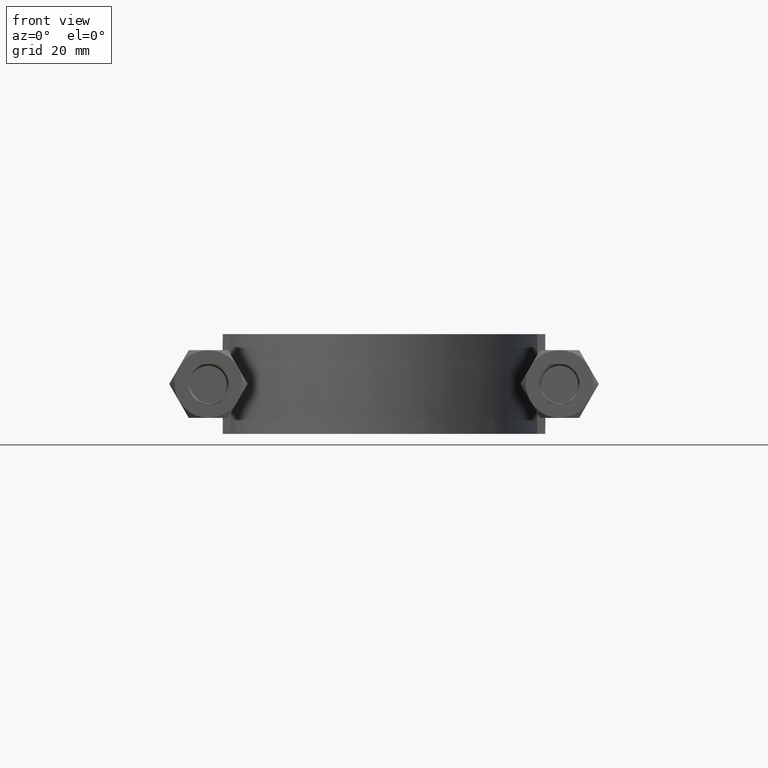
[diagram: clean part render]
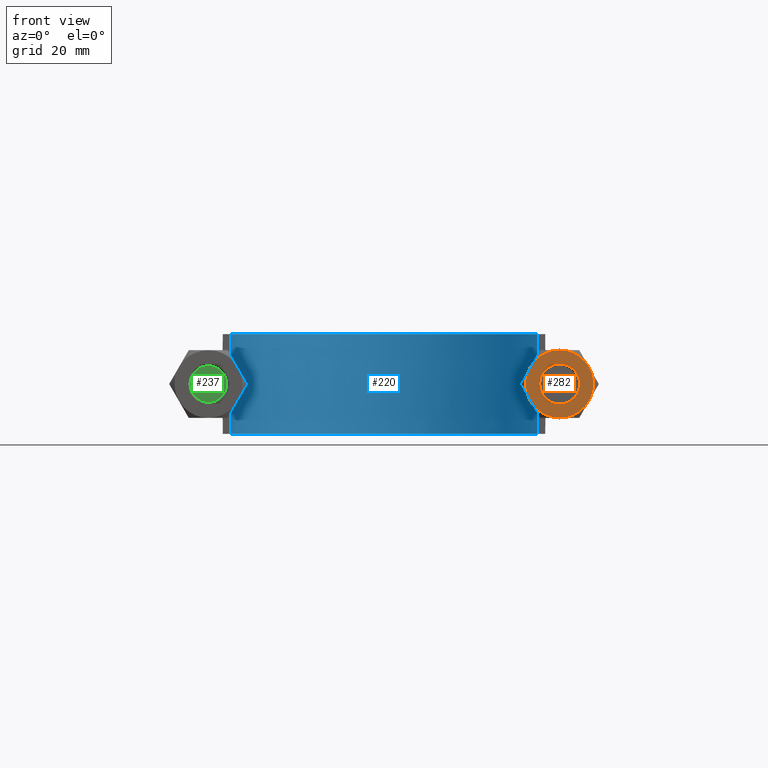
[diagram: same view with three faces highlighted in distinct colors, each labeled with its STEP entity id]
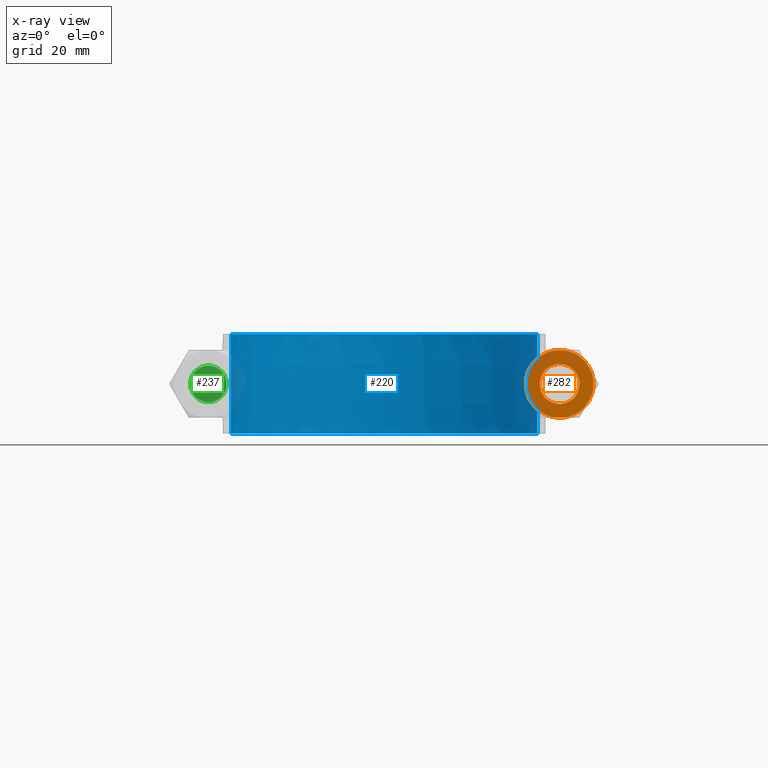
[diagram: x-ray of the same camera — body ghosted, the three highlighted faces saturated]
A machine part, front view with three faces highlighted in distinct colors.
The next image is the same camera in x-ray (body ghosted, the three faces saturated) — at least one of them is partly hidden behind the body in this view.
Their STEP definitions:

[orange] entity #282 — the highlighted planar face has unit normal (0, 1, 0).
#282 = ADVANCED_FACE( '', ( #435, #436 ), #437, .F. );
#435 = FACE_OUTER_BOUND( '', #1278, .T. );
#436 = FACE_BOUND( '', #1279, .T. );
#437 = PLANE( '', #1280 );
#1278 = EDGE_LOOP( '', ( #1752, #1753, #1754, #1755, #1756, #1757 ) );
#1279 = EDGE_LOOP( '', ( #1758 ) );
#1280 = AXIS2_PLACEMENT_3D( '', #1759, #1760, #1761 );
#1752 = ORIENTED_EDGE( '', *, *, #1972, .F. );
#1753 = ORIENTED_EDGE( '', *, *, #1977, .F. );
#1754 = ORIENTED_EDGE( '', *, *, #1953, .F. );
#1755 = ORIENTED_EDGE( '', *, *, #1969, .F. );
#1756 = ORIENTED_EDGE( '', *, *, #1939, .F. );
#1757 = ORIENTED_EDGE( '', *, *, #1978, .F. );
#1758 = ORIENTED_EDGE( '', *, *, #1979, .T. );
#1759 = CARTESIAN_POINT( '', ( 44.0000000000000, 20.0000000000000, 1.48980220521233E-015 ) );
#1760 = DIRECTION( '', ( 1.49966072182214E-032, 1.00000000000000, 6.12303176911190E-017 ) );
#1761 = DIRECTION( '', ( 1.00000000000000, 0.000000000000000, -2.44921270764475E-016 ) );
#1939 = EDGE_CURVE( '', #2152, #2154, #2155, .T. );
#1953 = EDGE_CURVE( '', #2173, #2180, #2181, .T. );
#1969 = EDGE_CURVE( '', #2154, #2173, #2208, .T. );
#1972 = EDGE_CURVE( '', #2212, #2213, #2214, .T. );
#1977 = EDGE_CURVE( '', #2180, #2212, #2219, .T. );
#1978 = EDGE_CURVE( '', #2213, #2152, #2220, .T. );
#1979 = EDGE_CURVE( '', #2221, #2221, #2222, .T. );
#2152 = VERTEX_POINT( '', #2717 );
#2154 = VERTEX_POINT( '', #2724 );
#2155 = CIRCLE( '', #2725, 8.49999999999575 );
#2173 = VERTEX_POINT( '', #2752 );
#2180 = VERTEX_POINT( '', #2771 );
#2181 = CIRCLE( '', #2772, 8.49999999999575 );
#2208 = CIRCLE( '', #2811, 8.49999999999575 );
#2212 = VERTEX_POINT( '', #2820 );
#2213 = VERTEX_POINT( '', #2821 );
#2214 = CIRCLE( '', #2822, 8.49999999999575 );
#2219 = CIRCLE( '', #2839, 8.49999999999575 );
#2220 = CIRCLE( '', #2840, 8.49999999999575 );
#2221 = VERTEX_POINT( '', #2841 );
#2222 = CIRCLE( '', #2842, 4.99999999999750 );
#2717 = CARTESIAN_POINT( '', ( 51.3612159321640, 20.0000000000000, -4.24999999999785 ) );
#2724 = CARTESIAN_POINT( '', ( 44.0000000000000, 20.0000000000000, -8.49999999999575 ) );
#2725 = AXIS2_PLACEMENT_3D( '', #3031, #3032, #3033 );
#2752 = CARTESIAN_POINT( '', ( 36.6387840678359, 20.0000000000000, -4.24999999999789 ) );
#2771 = CARTESIAN_POINT( '', ( 36.6387840678360, 20.0000000000000, 4.24999999999788 ) );
#2772 = AXIS2_PLACEMENT_3D( '', #3052, #3053, #3054 );
#2811 = AXIS2_PLACEMENT_3D( '', #3083, #3084, #3085 );
#2820 = CARTESIAN_POINT( '', ( 44.0000000000000, 20.0000000000000, 8.49999999999575 ) );
#2821 = CARTESIAN_POINT( '', ( 51.3612159321641, 20.0000000000000, 4.24999999999787 ) );
#2822 = AXIS2_PLACEMENT_3D( '', #3089, #3090, #3091 );
#2839 = AXIS2_PLACEMENT_3D( '', #3094, #3095, #3096 );
#2840 = AXIS2_PLACEMENT_3D( '', #3097, #3098, #3099 );
#2841 = CARTESIAN_POINT( '', ( 44.0000000000000, 20.0000000000000, 4.99999999999750 ) );
#2842 = AXIS2_PLACEMENT_3D( '', #3100, #3101, #3102 );
#3031 = CARTESIAN_POINT( '', ( 44.0000000000000, 20.0000000000000, 1.48980220521233E-015 ) );
#3032 = DIRECTION( '', ( 1.49966072182214E-032, 1.00000000000000, 6.12303176911190E-017 ) );
#3033 = DIRECTION( '', ( 0.000000000000000, -6.12303176911190E-017, 1.00000000000000 ) );
#3052 = CARTESIAN_POINT( '', ( 44.0000000000000, 20.0000000000000, 1.48980220521233E-015 ) );
#3053 = DIRECTION( '', ( 1.49966072182214E-032, 1.00000000000000, 6.12303176911190E-017 ) );
#3054 = DIRECTION( '', ( 0.000000000000000, -6.12303176911190E-017, 1.00000000000000 ) );
#3083 = CARTESIAN_POINT( '', ( 44.0000000000000, 20.0000000000000, 1.48980220521233E-015 ) );
#3084 = DIRECTION( '', ( 1.49966072182214E-032, 1.00000000000000, 6.12303176911190E-017 ) );
#3085 = DIRECTION( '', ( 0.000000000000000, -6.12303176911190E-017, 1.00000000000000 ) );
#3089 = CARTESIAN_POINT( '', ( 44.0000000000000, 20.0000000000000, 1.48980220521233E-015 ) );
#3090 = DIRECTION( '', ( 1.49966072182214E-032, 1.00000000000000, 6.12303176911190E-017 ) );
#3091 = DIRECTION( '', ( 0.000000000000000, -6.12303176911190E-017, 1.00000000000000 ) );
#3094 = CARTESIAN_POINT( '', ( 44.0000000000000, 20.0000000000000, 1.48980220521233E-015 ) );
#3095 = DIRECTION( '', ( 1.49966072182214E-032, 1.00000000000000, 6.12303176911190E-017 ) );
#3096 = DIRECTION( '', ( 0.000000000000000, -6.12303176911190E-017, 1.00000000000000 ) );
#3097 = CARTESIAN_POINT( '', ( 44.0000000000000, 20.0000000000000, 1.48980220521233E-015 ) );
#3098 = DIRECTION( '', ( 1.49966072182214E-032, 1.00000000000000, 6.12303176911190E-017 ) );
#3099 = DIRECTION( '', ( 0.000000000000000, -6.12303176911190E-017, 1.00000000000000 ) );
#3100 = CARTESIAN_POINT( '', ( 44.0000000000000, 20.0000000000000, 1.48980220521233E-015 ) );
#3101 = DIRECTION( '', ( 1.49966072182214E-032, 1.00000000000000, 6.12303176911190E-017 ) );
#3102 = DIRECTION( '', ( 0.000000000000000, -6.12303176911190E-017, 1.00000000000000 ) );

[blue] entity #220 — the highlighted face is a SurfaceOfExtrusion surface.
#220 = ADVANCED_FACE( '', ( #297 ), #298, .T. );
#297 = FACE_OUTER_BOUND( '', #464, .T. );
#298 = SURFACE_OF_LINEAR_EXTRUSION( '', #465, #466 );
#464 = EDGE_LOOP( '', ( #1312, #1313, #1314, #1315 ) );
#465 = B_SPLINE_CURVE_WITH_KNOTS( '', 3, ( #1316, #1317, #1318, #1319, #1320, #1321, #1322, #1323, #1324, #1325, #1326, #1327, #1328, #1329, #1330, #1331, #1332 ), .UNSPECIFIED., .F., .F., ( 4, 3, 1, 1, 1, 1, 1, 1, 1, 3, 4 ), ( -7.93017456359102, -7.00000000000000, -6.50000000000000, -6.00000000000000, -5.00000000000000, -4.00000000000000, -3.00000000000000, -2.00000000000000, -1.50000000000000, -1.00000000000000, -0.0698254364089773 ), .UNSPECIFIED. );
#466 = VECTOR( '', #1333, 1000.00000000000 );
#1312 = ORIENTED_EDGE( '', *, *, #1839, .T. );
#1313 = ORIENTED_EDGE( '', *, *, #1843, .T. );
#1314 = ORIENTED_EDGE( '', *, *, #1844, .F. );
#1315 = ORIENTED_EDGE( '', *, *, #1845, .T. );
#1316 = CARTESIAN_POINT( '', ( 38.4000000000000, 59.3000000000000, 12.5000100000909 ) );
#1317 = CARTESIAN_POINT( '', ( 38.4000000000000, 71.7333333333333, 12.5000100000909 ) );
#1318 = CARTESIAN_POINT( '', ( 38.4000000000000, 84.1666666666667, 12.5000100000909 ) );
#1319 = CARTESIAN_POINT( '', ( 38.4000000000000, 96.6000000000000, 12.5000100000909 ) );
#1320 = CARTESIAN_POINT( '', ( 38.4000000000000, 99.9378960382427, 12.5000100000909 ) );
#1321 = CARTESIAN_POINT( '', ( 37.5004323173849, 106.653498701236, 12.5000100000909 ) );
#1322 = CARTESIAN_POINT( '', ( 32.3590360537293, 119.146842750795, 12.5000100000909 ) );
#1323 = CARTESIAN_POINT( '', ( 20.0971465093487, 131.410921736661, 12.5000100000909 ) );
#1324 = CARTESIAN_POINT( '', ( 3.06297339866991E-014, 136.794539131670, 12.5000100000909 ) );
#1325 = CARTESIAN_POINT( '', ( -20.0971465093486, 131.410921736661, 12.5000100000909 ) );
#1326 = CARTESIAN_POINT( '', ( -32.3590360537293, 119.146842750795, 12.5000100000909 ) );
#1327 = CARTESIAN_POINT( '', ( -37.5004323173848, 106.653498701236, 12.5000100000909 ) );
#1328 = CARTESIAN_POINT( '', ( -38.4000000000000, 99.9378960382428, 12.5000100000909 ) );
#1329 = CARTESIAN_POINT( '', ( -38.4000000000000, 96.6000000000000, 12.5000100000909 ) );
#1330 = CARTESIAN_POINT( '', ( -38.4000000000000, 84.1666666666667, 12.5000100000909 ) );
#1331 = CARTESIAN_POINT( '', ( -38.4000000000000, 71.7333333333333, 12.5000100000909 ) );
#1332 = CARTESIAN_POINT( '', ( -38.4000000000000, 59.3000000000000, 12.5000100000909 ) );
#1333 = DIRECTION( '', ( 0.000000000000000, 0.000000000000000, -1.00000000000000 ) );
#1839 = EDGE_CURVE( '', #1989, #1990, #1991, .T. );
#1843 = EDGE_CURVE( '', #1990, #1997, #1998, .F. );
#1844 = EDGE_CURVE( '', #1999, #1997, #2000, .T. );
#1845 = EDGE_CURVE( '', #1999, #1989, #2001, .T. );
#1989 = VERTEX_POINT( '', #2235 );
#1990 = VERTEX_POINT( '', #2236 );
#1991 = LINE( '', #2237, #2238 );
#1997 = VERTEX_POINT( '', #2276 );
#1998 = B_SPLINE_CURVE_WITH_KNOTS( '', 3, ( #2277, #2278, #2279, #2280, #2281, #2282, #2283, #2284, #2285, #2286, #2287, #2288, #2289, #2290, #2291, #2292, #2293 ), .UNSPECIFIED., .F., .F., ( 4, 3, 1, 1, 1, 1, 1, 1, 1, 3, 4 ), ( -7.93017456359102, -7.00000000000000, -6.50000000000000, -6.00000000000000, -5.00000000000000, -4.00000000000000, -3.00000000000000, -2.00000000000000, -1.50000000000000, -1.00000000000000, -0.0698254364089773 ), .UNSPECIFIED. );
#1999 = VERTEX_POINT( '', #2294 );
#2000 = LINE( '', #2295, #2296 );
#2001 = B_SPLINE_CURVE_WITH_KNOTS( '', 3, ( #2297, #2298, #2299, #2300, #2301, #2302, #2303, #2304, #2305, #2306, #2307, #2308, #2309, #2310, #2311, #2312, #2313, #2314, #2315, #2316, #2317, #2318, #2319, #2320, #2321, #2322, #2323, #2324, #2325, #2326, #2327, #2328, #2329, #2330, #2331, #2332, #2333, #2334, #2335, #2336, #2337, #2338, #2339, #2340, #2341, #2342, #2343, #2344, #2345, #2346, #2347, #2348, #2349, #2350, #2351, #2352, #2353, #2354, #2355, #2356, #2357, #2358, #2359, #2360, #2361, #2362, #2363, #2364, #2365, #2366, #2367, #2368, #2369, #2370, #2371, #2372, #2373, #2374, #2375, #2376, #2377, #2378, #2379, #2380, #2381, #2382 ), .UNSPECIFIED., .F., .F., ( 4, 1, 2, 2, 2, 2, 2, 2, 2, 2, 2, 2, 2, 2, 2, 2, 2, 2, 2, 2, 2, 2, 2, 2, 2, 2, 2, 2, 2, 2, 2, 2, 2, 2, 2, 2, 2, 2, 2, 2, 2, 2, 1, 4 ), ( 6.93889390390723E-018, 0.0243379018108107, 0.0365068527162160, 0.0380279715793916, 0.0395490904425673, 0.0425913281689186, 0.0456335658952699, 0.0486758036216212, 0.0547602790743238, 0.0578025168006751, 0.0593236356638507, 0.0608447545270264, 0.0669292299797289, 0.0699714677060801, 0.0714925865692557, 0.0730137054324314, 0.0790981808851338, 0.0851826563378363, 0.0867037752010119, 0.0882248940641875, 0.0912671317905387, 0.0973516072432411, 0.0988727261064167, 0.100393844969592, 0.103436082695944, 0.109520558148646, 0.112562795874997, 0.115605033601348, 0.121689509054051, 0.123210627917226, 0.124731746780402, 0.127773984506753, 0.133858459959456, 0.136900697685807, 0.139942935412158, 0.146027410864861, 0.149069648591212, 0.150590767454388, 0.152111886317563, 0.155154124043915, 0.156675242907090, 0.158196361770266, 0.170365312675671, 0.194703214486480 ), .UNSPECIFIED. );
#2235 = CARTESIAN_POINT( '', ( -38.4000000000000, 59.3000000000000, 12.5000000000000 ) );
#2236 = CARTESIAN_POINT( '', ( -38.4000000000000, 59.3000000000000, -12.5000000000000 ) );
#2237 = CARTESIAN_POINT( '', ( -38.4000000000000, 59.3000000000000, 12.5000100000909 ) );
#2238 = VECTOR( '', #2878, 1000.00000000000 );
#2276 = CARTESIAN_POINT( '', ( 38.4000000000000, 59.3000000000000, -12.5000000000000 ) );
#2277 = CARTESIAN_POINT( '', ( 38.4000000000000, 59.3000000000000, -12.5000000000000 ) );
#2278 = CARTESIAN_POINT( '', ( 38.4000000000000, 71.7333333333333, -12.5000000000000 ) );
#2279 = CARTESIAN_POINT( '', ( 38.4000000000000, 84.1666666666667, -12.5000000000000 ) );
#2280 = CARTESIAN_POINT( '', ( 38.4000000000000, 96.6000000000000, -12.5000000000000 ) );
#2281 = CARTESIAN_POINT( '', ( 38.4000000000000, 99.9378960382427, -12.5000000000000 ) );
#2282 = CARTESIAN_POINT( '', ( 37.5004323173849, 106.653498701236, -12.5000000000000 ) );
#2283 = CARTESIAN_POINT( '', ( 32.3590360537293, 119.146842750795, -12.5000000000000 ) );
#2284 = CARTESIAN_POINT( '', ( 20.0971465093487, 131.410921736661, -12.5000000000000 ) );
#2285 = CARTESIAN_POINT( '', ( 3.06297339866991E-014, 136.794539131670, -12.5000000000000 ) );
#2286 = CARTESIAN_POINT( '', ( -20.0971465093486, 131.410921736661, -12.5000000000000 ) );
#2287 = CARTESIAN_POINT( '', ( -32.3590360537293, 119.146842750795, -12.5000000000000 ) );
#2288 = CARTESIAN_POINT( '', ( -37.5004323173848, 106.653498701236, -12.5000000000000 ) );
#2289 = CARTESIAN_POINT( '', ( -38.4000000000000, 99.9378960382428, -12.5000000000000 ) );
#2290 = CARTESIAN_POINT( '', ( -38.4000000000000, 96.6000000000000, -12.5000000000000 ) );
#2291 = CARTESIAN_POINT( '', ( -38.4000000000000, 84.1666666666667, -12.5000000000000 ) );
#2292 = CARTESIAN_POINT( '', ( -38.4000000000000, 71.7333333333333, -12.5000000000000 ) );
#2293 = CARTESIAN_POINT( '', ( -38.4000000000000, 59.3000000000000, -12.5000000000000 ) );
#2294 = CARTESIAN_POINT( '', ( 38.4000000000000, 59.3000000000000, 12.5000000000000 ) );
#2295 = CARTESIAN_POINT( '', ( 38.4000000000000, 59.3000000000000, 12.5000100000909 ) );
#2296 = VECTOR( '', #2881, 1000.00000000000 );
#2297 = CARTESIAN_POINT( '', ( 38.4000000000000, 59.3000000000000, 12.5000000000000 ) );
#2298 = CARTESIAN_POINT( '', ( 38.4000000000000, 67.4126339369367, 12.5000000000000 ) );
#2299 = CARTESIAN_POINT( '', ( 38.4000000000000, 79.5815848423417, 12.5000000000000 ) );
#2300 = CARTESIAN_POINT( '', ( 38.4000000000000, 91.7505357477467, 12.5000000000000 ) );
#2301 = CARTESIAN_POINT( '', ( 38.4000000000000, 96.3138923372736, 12.5000000000000 ) );
#2302 = CARTESIAN_POINT( '', ( 38.4027743076037, 96.8211194098902, 12.5000000000000 ) );
#2303 = CARTESIAN_POINT( '', ( 38.3830167791574, 97.8338636956790, 12.5000000000000 ) );
#2304 = CARTESIAN_POINT( '', ( 38.3628782069929, 98.3395426144399, 12.5000000000000 ) );
#2305 = CARTESIAN_POINT( '', ( 38.2722040230530, 99.8545348977656, 12.5000000000000 ) );
#2306 = CARTESIAN_POINT( '', ( 38.1714849409613, 100.861808856702, 12.5000000000000 ) );
#2307 = CARTESIAN_POINT( '', ( 37.8904277266655, 102.870977156620, 12.5000000000000 ) );
#2308 = CARTESIAN_POINT( '', ( 37.7100929165158, 103.872871722062, 12.5000000000000 ) );
#2309 = CARTESIAN_POINT( '', ( 37.2682777085644, 105.871178091473, 12.5000000000000 ) );
#2310 = CARTESIAN_POINT( '', ( 37.0058649207665, 106.869209598004, 12.5000000000000 ) );
#2311 = CARTESIAN_POINT( '', ( 36.1099085355124, 109.800428328994, 12.5000000000000 ) );
#2312 = CARTESIAN_POINT( '', ( 35.3652812283339, 111.689277860510, 12.5000000000000 ) );
#2313 = CARTESIAN_POINT( '', ( 34.0270721353676, 114.424482046523, 12.5000000000000 ) );
#2314 = CARTESIAN_POINT( '', ( 33.5438803306412, 115.319763573667, 12.5000000000000 ) );
#2315 = CARTESIAN_POINT( '', ( 32.7614856080269, 116.637153374160, 12.5000000000000 ) );
#2316 = CARTESIAN_POINT( '', ( 32.4911122498970, 117.072039439345, 12.5000000000000 ) );
#2317 = CARTESIAN_POINT( '', ( 31.9310694523163, 117.933259191099, 12.5000000000000 ) );
#2318 = CARTESIAN_POINT( '', ( 31.6416548483074, 118.359099832881, 12.5000000000000 ) );
#2319 = CARTESIAN_POINT( '', ( 30.1598500561493, 120.447972709778, 12.5000000000000 ) );
#2320 = CARTESIAN_POINT( '', ( 28.8544690281685, 122.006253780205, 12.5000000000000 ) );
#2321 = CARTESIAN_POINT( '', ( 26.7242269234556, 124.181725572989, 12.5000000000000 ) );
#2322 = CARTESIAN_POINT( '', ( 25.9852601970117, 124.879711605143, 12.5000000000000 ) );
#2323 = CARTESIAN_POINT( '', ( 24.8327554866621, 125.885251295440, 12.5000000000000 ) );
#2324 = CARTESIAN_POINT( '', ( 24.4412331318477, 126.213513644747, 12.5000000000000 ) );
#2325 = CARTESIAN_POINT( '', ( 23.6432116170531, 126.855950622700, 12.5000000000000 ) );
#2326 = CARTESIAN_POINT( '', ( 23.2357844532914, 127.170799679600, 12.5000000000000 ) );
#2327 = CARTESIAN_POINT( '', ( 21.1728995967701, 128.699717522121, 12.5000000000000 ) );
#2328 = CARTESIAN_POINT( '', ( 19.4461214786924, 129.775116348712, 12.5000000000000 ) );
#2329 = CARTESIAN_POINT( '', ( 15.8424012951628, 131.635807157406, 12.5000000000000 ) );
#2330 = CARTESIAN_POINT( '', ( 13.9663663217125, 132.422851581443, 12.5000000000000 ) );
#2331 = CARTESIAN_POINT( '', ( 11.5271708169513, 133.224762065559, 12.5000000000000 ) );
#2332 = CARTESIAN_POINT( '', ( 11.0351210878859, 133.375746188077, 12.5000000000000 ) );
#2333 = CARTESIAN_POINT( '', ( 10.0502423640909, 133.656786422983, 12.5000000000000 ) );
#2334 = CARTESIAN_POINT( '', ( 9.55637016529635, 133.787194835959, 12.5000000000000 ) );
#2335 = CARTESIAN_POINT( '', ( 8.07051418322873, 134.148502213832, 12.5000000000000 ) );
#2336 = CARTESIAN_POINT( '', ( 7.07429985999588, 134.349545743025, 12.5000000000000 ) );
#2337 = CARTESIAN_POINT( '', ( 4.06886690428292, 134.834187354575, 12.5000000000000 ) );
#2338 = CARTESIAN_POINT( '', ( 2.04300780873486, 135.000351662540, 12.5000000000000 ) );
#2339 = CARTESIAN_POINT( '', ( -0.518810472446091, 134.999911391897, 12.5000000000000 ) );
#2340 = CARTESIAN_POINT( '', ( -1.03384934041121, 134.989267949139, 12.5000000000000 ) );
#2341 = CARTESIAN_POINT( '', ( -2.05999227101022, 134.947123645522, 12.5000000000000 ) );
#2342 = CARTESIAN_POINT( '', ( -2.57100025916361, 134.915690794062, 12.5000000000000 ) );
#2343 = CARTESIAN_POINT( '', ( -4.09798525337116, 134.791070625937, 12.5000000000000 ) );
#2344 = CARTESIAN_POINT( '', ( -5.10793619044561, 134.667626472700, 12.5000000000000 ) );
#2345 = CARTESIAN_POINT( '', ( -8.11438462156133, 134.179780837089, 12.5000000000000 ) );
#2346 = CARTESIAN_POINT( '', ( -10.0876738344829, 133.698850790019, 12.5000000000000 ) );
#2347 = CARTESIAN_POINT( '', ( -13.0003199951630, 132.740024822744, 12.5000000000000 ) );
#2348 = CARTESIAN_POINT( '', ( -13.9672170977487, 132.378727202231, 12.5000000000000 ) );
#2349 = CARTESIAN_POINT( '', ( -15.8546719802245, 131.585984907772, 12.5000000000000 ) );
#2350 = CARTESIAN_POINT( '', ( -16.7774313079128, 131.154197465975, 12.5000000000000 ) );
#2351 = CARTESIAN_POINT( '', ( -19.4833402127082, 129.753490344414, 12.5000000000000 ) );
#2352 = CARTESIAN_POINT( '', ( -21.2036319794209, 128.678400373100, 12.5000000000000 ) );
#2353 = CARTESIAN_POINT( '', ( -23.2504143165322, 127.159581599005, 12.5000000000000 ) );
#2354 = CARTESIAN_POINT( '', ( -23.6545765017689, 126.847044416500, 12.5000000000000 ) );
#2355 = CARTESIAN_POINT( '', ( -24.4524162332018, 126.204260920726, 12.5000000000000 ) );
#2356 = CARTESIAN_POINT( '', ( -24.8469576925089, 125.873240647292, 12.5000000000000 ) );
#2357 = CARTESIAN_POINT( '', ( -26.0068899055368, 124.860053871450, 12.5000000000000 ) );
#2358 = CARTESIAN_POINT( '', ( -26.7486892538445, 124.158088969384, 12.5000000000000 ) );
#2359 = CARTESIAN_POINT( '', ( -28.8823748109422, 121.974991317251, 12.5000000000000 ) );
#2360 = CARTESIAN_POINT( '', ( -30.1833131714200, 120.417299289572, 12.5000000000000 ) );
#2361 = CARTESIAN_POINT( '', ( -31.9490860628640, 117.924495268019, 12.5000000000000 ) );
#2362 = CARTESIAN_POINT( '', ( -32.5065492449488, 117.067357440084, 12.5000000000000 ) );
#2363 = CARTESIAN_POINT( '', ( -33.5561706257855, 115.298108495221, 12.5000000000000 ) );
#2364 = CARTESIAN_POINT( '', ( -34.0419906193419, 114.396127879279, 12.5000000000000 ) );
#2365 = CARTESIAN_POINT( '', ( -35.3824842141312, 111.649725427965, 12.5000000000000 ) );
#2366 = CARTESIAN_POINT( '', ( -36.1236281599900, 109.761104672605, 12.5000000000000 ) );
#2367 = CARTESIAN_POINT( '', ( -37.0127103209049, 106.843968621002, 12.5000000000000 ) );
#2368 = CARTESIAN_POINT( '', ( -37.2717329928219, 105.857467876968, 12.5000000000000 ) );
#2369 = CARTESIAN_POINT( '', ( -37.6030425852181, 104.356073245167, 12.5000000000000 ) );
#2370 = CARTESIAN_POINT( '', ( -37.7041051856697, 103.850877289074, 12.5000000000000 ) );
#2371 = CARTESIAN_POINT( '', ( -37.8853786337735, 102.841026729264, 12.5000000000000 ) );
#2372 = CARTESIAN_POINT( '', ( -37.9657364586178, 102.335935616760, 12.5000000000000 ) );
#2373 = CARTESIAN_POINT( '', ( -38.1763323138402, 100.820170574568, 12.5000000000000 ) );
#2374 = CARTESIAN_POINT( '', ( -38.2761686057870, 99.8090061644105, 12.5000000000000 ) );
#2375 = CARTESIAN_POINT( '', ( -38.3651025185759, 98.2912783131886, 12.5000000000000 ) );
#2376 = CARTESIAN_POINT( '', ( -38.3845912942189, 97.7852051818457, 12.5000000000000 ) );
#2377 = CARTESIAN_POINT( '', ( -38.4030301939459, 96.7727275628628, 12.5000000000000 ) );
#2378 = CARTESIAN_POINT( '', ( -38.4000000000000, 96.2662911261513, 12.5000000000000 ) );
#2379 = CARTESIAN_POINT( '', ( -38.4000000000000, 91.7088031790915, 12.5000000000000 ) );
#2380 = CARTESIAN_POINT( '', ( -38.4000000000000, 79.5555019869322, 12.5000000000000 ) );
#2381 = CARTESIAN_POINT( '', ( -38.4000000000000, 67.4022007947729, 12.5000000000000 ) );
#2382 = CARTESIAN_POINT( '', ( -38.4000000000000, 59.3000000000000, 12.5000000000000 ) );
#2878 = DIRECTION( '', ( 0.000000000000000, 0.000000000000000, -1.00000000000000 ) );
#2881 = DIRECTION( '', ( 0.000000000000000, 0.000000000000000, -1.00000000000000 ) );

[green] entity #237 — the highlighted planar face has unit normal (-0, -1, -0).
#237 = ADVANCED_FACE( '', ( #335 ), #336, .T. );
#335 = FACE_OUTER_BOUND( '', #1178, .T. );
#336 = PLANE( '', #1179 );
#1178 = EDGE_LOOP( '', ( #1440 ) );
#1179 = AXIS2_PLACEMENT_3D( '', #1441, #1442, #1443 );
#1440 = ORIENTED_EDGE( '', *, *, #1882, .T. );
#1441 = CARTESIAN_POINT( '', ( -44.0000000000000, 1.07765359136369E-014, 6.12303176911192E-017 ) );
#1442 = DIRECTION( '', ( -2.44921270764476E-016, -1.00000000000000, -6.12303176911189E-017 ) );
#1443 = DIRECTION( '', ( -1.00000000000000, 2.44921270764476E-016, 3.01888774004914E-048 ) );
#1882 = EDGE_CURVE( '', #2057, #2057, #2058, .T. );
#2057 = VERTEX_POINT( '', #2544 );
#2058 = CIRCLE( '', #2545, 4.60000000000000 );
#2544 = CARTESIAN_POINT( '', ( -39.4000000000000, 9.64989806812033E-015, 6.12303176911191E-017 ) );
#2545 = AXIS2_PLACEMENT_3D( '', #2935, #2936, #2937 );
#2935 = CARTESIAN_POINT( '', ( -44.0000000000000, 1.07765359136369E-014, 6.12303176911192E-017 ) );
#2936 = DIRECTION( '', ( -2.44921270764476E-016, -1.00000000000000, -6.12303176911189E-017 ) );
#2937 = DIRECTION( '', ( 1.00000000000000, -2.44921270764476E-016, -1.01150562509412E-032 ) );